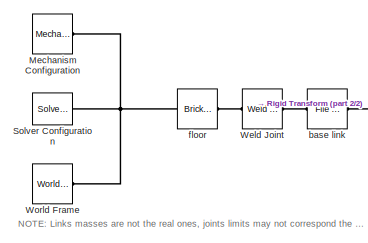
[diagram: root canvas - part 1/2, top left region]
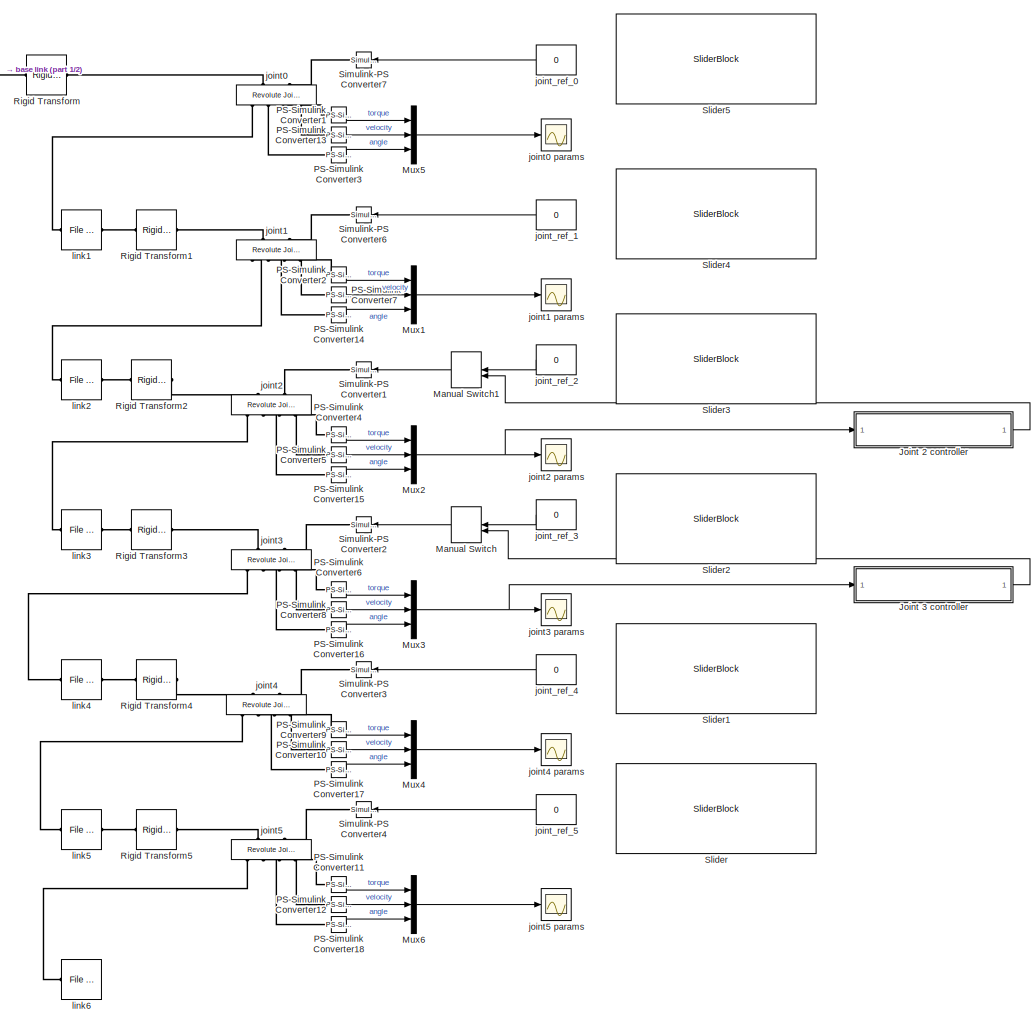
[diagram: root canvas - part 2/2, center side, full height]
MODEL slx_53d466d1d8d0
KIND model
CONFIG AbsTol = auto
CONFIG EnableMultiTasking = off
CONFIG FixedStep = auto
CONFIG MaxStep = auto
CONFIG MinStep = auto
CONFIG RelTol = 1e-3
CONFIG SampleTimeConstraint = Unconstrained
CONFIG SolverName = VariableStepAuto
CONFIG StartTime = 0.0
CONFIG StopTime = inf
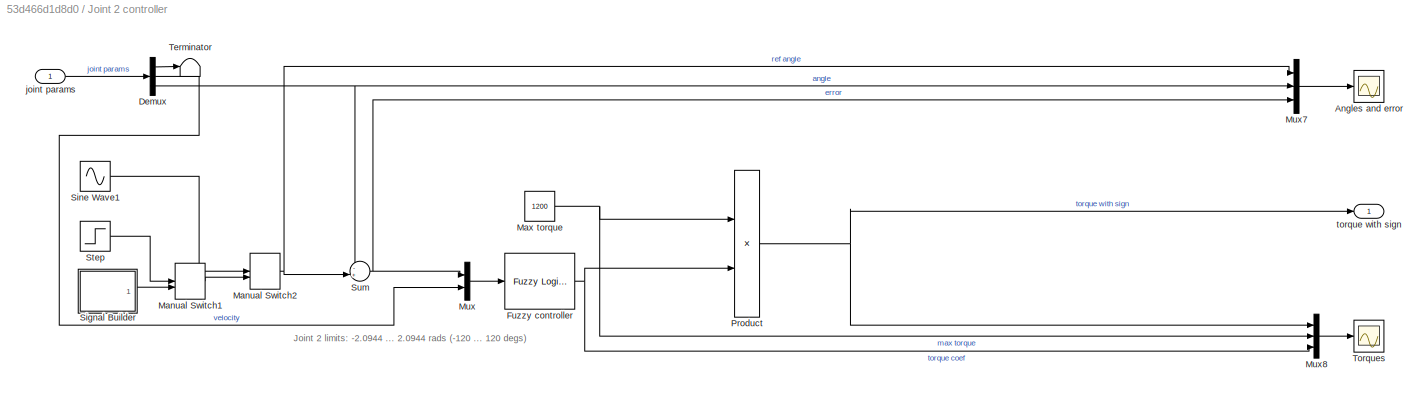
BLOCK [SubSystem] Joint 2 controller
  Ports = [1, 1]
  RequestExecContextInheritance = off
BLOCK [Scope] Joint 2 controller/Angles and error
  Floating = off
  NumInputPorts = 1
  Ports = [1]
  ScopeSpecificationString = Simulink.scopes.TimeScopeBlockCfg('CurrentConfiguration', extmgr.ConfigurationSet(extmgr.Configuration('Core','General UI',true),extmgr.Configuration('Core','Source UI',true),extmgr.Configuration('Sources','WiredSimulink',true,'DataLoggingVariableName','ScopeData1'),extmgr.Configuration('Visuals','Time Domain',true,'SerializedDisplays',{struct('MinYLimReal','-0.94651','MaxYLimReal','0.93899','YLab...<+1455ch>
BLOCK [Demux] Joint 2 controller/Demux
  Outputs = 3
  Ports = [1, 3]
BLOCK [Reference] Joint 2 controller/Fuzzy controller  REF=fuzblock/Fuzzy Logic   (lib defined in mdl_858b3b3e7478)
Controller
  Ports = [1, 1]
  SourceBlock = fuzblock/Fuzzy Logic \nController
  SourceProductBaseCode = FL
  SourceType = Fuzzy Inference System
BLOCK [ManualSwitch] Joint 2 controller/Manual Switch1
  CurrentSetting = 0
BLOCK [ManualSwitch] Joint 2 controller/Manual Switch2
  CurrentSetting = 0
BLOCK [Constant] Joint 2 controller/Max torque
  Value = 1200
BLOCK [Mux] Joint 2 controller/Mux
  DisplayOption = bar
  Inputs = 2
  Ports = [2, 1]
BLOCK [Mux] Joint 2 controller/Mux7
  DisplayOption = bar
  Inputs = 3
  Ports = [3, 1]
BLOCK [Mux] Joint 2 controller/Mux8
  DisplayOption = bar
  Inputs = 3
  Ports = [3, 1]
BLOCK [Product] Joint 2 controller/Product
  Ports = [2, 1]
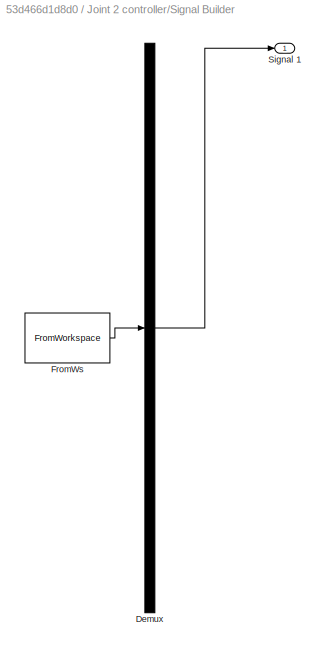
BLOCK [SubSystem] Joint 2 controller/Signal Builder
  ClipboardFcn = sigbuilder_block('clipboard');
  CloseFcn = sigbuilder_block('close');
  ContinueFcn = sigbuilder_block('continue');
  CopyFcn = sigbuilder_block('copy');
  DeleteFcn = sigbuilder_block('delete');
  LoadFcn = sigbuilder_block('load');
  MaskHideContents = on
  ModelCloseFcn = sigbuilder_block('modelClose');
  NameChangeFcn = sigbuilder_block('namechange');
  OpenFcn = sigbuilder_block('open',[297 108.75 550.5 399.75 ]);
  PauseFcn = sigbuilder_block('pause');
  Ports = [0, 1]
  PreSaveFcn = sigbuilder_block('preSave');
  RequestExecContextInheritance = off
  StartFcn = sigbuilder_block('start');
  StopFcn = sigbuilder_block('stop');
  Tag = STV Subsys
BLOCK [Demux] Joint 2 controller/Signal Builder/Demux
  DisplayOption = none
  Outputs = 1
  Ports = [1, 1]
  Tag = STV Demux
BLOCK [FromWorkspace] Joint 2 controller/Signal Builder/FromWs
  Tag = STV FromWs
  VariableName = tuvar
BLOCK [Outport] Joint 2 controller/Signal Builder/Signal 1
  Tag = STV Outport
BLOCK [Sin] Joint 2 controller/Sine Wave1
  Amplitude = 0.5
  Ports = [0, 1]
  SampleTime = 0
BLOCK [Step] Joint 2 controller/Step
  After = -(pi/180)*43
  SampleTime = 0
BLOCK [Sum] Joint 2 controller/Sum
  Inputs = -+|
  Ports = [2, 1]
BLOCK [Terminator] Joint 2 controller/Terminator
BLOCK [Scope] Joint 2 controller/Torques
  Floating = off
  NumInputPorts = 1
  Ports = [1]
  ScopeSpecificationString = Simulink.scopes.TimeScopeBlockCfg('CurrentConfiguration', extmgr.ConfigurationSet(extmgr.Configuration('Core','General UI',true),extmgr.Configuration('Core','Source UI',true),extmgr.Configuration('Sources','WiredSimulink',true,'DataLoggingVariableName','ScopeData2'),extmgr.Configuration('Visuals','Time Domain',true,'SerializedDisplays',{struct('MinYLimReal','-565.56182','MaxYLimReal','1396.17354',...<+1563ch>
BLOCK [Inport] Joint 2 controller/joint params
BLOCK [Outport] Joint 2 controller/torque with sign
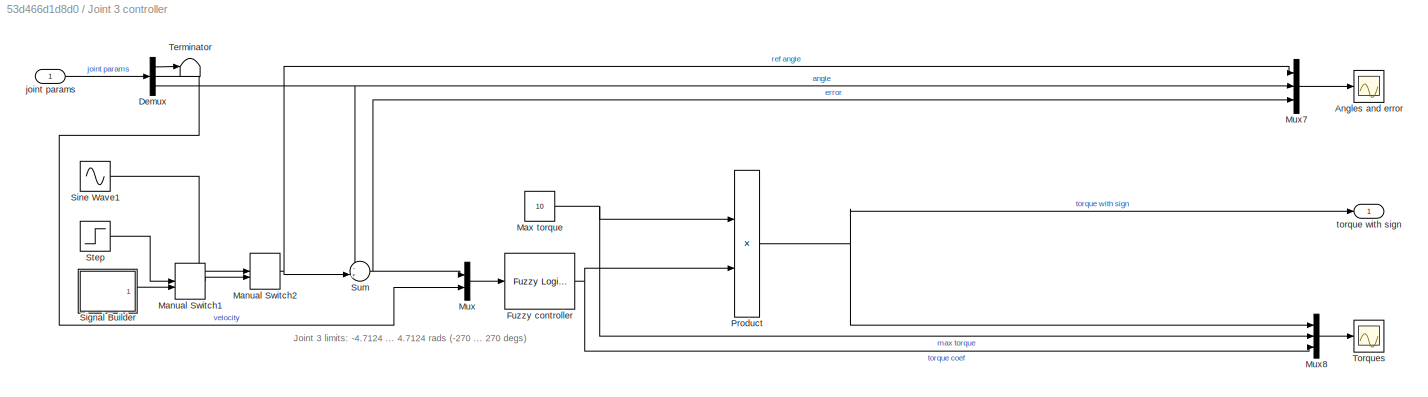
BLOCK [SubSystem] Joint 3 controller
  Ports = [1, 1]
  RequestExecContextInheritance = off
BLOCK [Scope] Joint 3 controller/Angles and error
  Floating = off
  NumInputPorts = 1
  Ports = [1]
  ScopeSpecificationString = Simulink.scopes.TimeScopeBlockCfg('CurrentConfiguration', extmgr.ConfigurationSet(extmgr.Configuration('Core','General UI',true),extmgr.Configuration('Core','Source UI',true),extmgr.Configuration('Sources','WiredSimulink',true,'DataLoggingVariableName','ScopeData1'),extmgr.Configuration('Visuals','Time Domain',true,'SerializedDisplays',{struct('MinYLimReal','-0.93918','MaxYLimReal','0.93931','YLab...<+1453ch>
BLOCK [Demux] Joint 3 controller/Demux
  Outputs = 3
  Ports = [1, 3]
BLOCK [Reference] Joint 3 controller/Fuzzy controller  REF=fuzblock/Fuzzy Logic   (lib defined in mdl_858b3b3e7478)
Controller
  Ports = [1, 1]
  SourceBlock = fuzblock/Fuzzy Logic \nController
  SourceProductBaseCode = FL
  SourceType = Fuzzy Inference System
BLOCK [ManualSwitch] Joint 3 controller/Manual Switch1
  CurrentSetting = 0
BLOCK [ManualSwitch] Joint 3 controller/Manual Switch2
  CurrentSetting = 0
BLOCK [Constant] Joint 3 controller/Max torque
  Value = 10
BLOCK [Mux] Joint 3 controller/Mux
  DisplayOption = bar
  Inputs = 2
  Ports = [2, 1]
BLOCK [Mux] Joint 3 controller/Mux7
  DisplayOption = bar
  Inputs = 3
  Ports = [3, 1]
BLOCK [Mux] Joint 3 controller/Mux8
  DisplayOption = bar
  Inputs = 3
  Ports = [3, 1]
BLOCK [Product] Joint 3 controller/Product
  Ports = [2, 1]
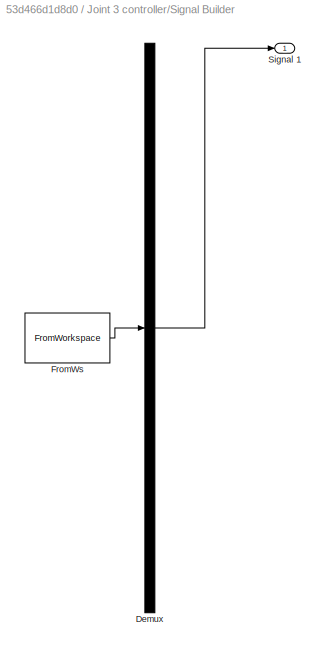
BLOCK [SubSystem] Joint 3 controller/Signal Builder
  ClipboardFcn = sigbuilder_block('clipboard');
  CloseFcn = sigbuilder_block('close');
  ContinueFcn = sigbuilder_block('continue');
  CopyFcn = sigbuilder_block('copy');
  DeleteFcn = sigbuilder_block('delete');
  LoadFcn = sigbuilder_block('load');
  MaskHideContents = on
  ModelCloseFcn = sigbuilder_block('modelClose');
  NameChangeFcn = sigbuilder_block('namechange');
  OpenFcn = sigbuilder_block('open',[297 108.75 550.5 399.75 ]);
  PauseFcn = sigbuilder_block('pause');
  Ports = [0, 1]
  PreSaveFcn = sigbuilder_block('preSave');
  RequestExecContextInheritance = off
  StartFcn = sigbuilder_block('start');
  StopFcn = sigbuilder_block('stop');
  Tag = STV Subsys
BLOCK [Demux] Joint 3 controller/Signal Builder/Demux
  DisplayOption = none
  Outputs = 1
  Ports = [1, 1]
  Tag = STV Demux
BLOCK [FromWorkspace] Joint 3 controller/Signal Builder/FromWs
  Tag = STV FromWs
  VariableName = tuvar
BLOCK [Outport] Joint 3 controller/Signal Builder/Signal 1
  Tag = STV Outport
BLOCK [Sin] Joint 3 controller/Sine Wave1
  Amplitude = 0.5
  Ports = [0, 1]
  SampleTime = 0
BLOCK [Step] Joint 3 controller/Step
  After = (pi/180)*43
  SampleTime = 0
BLOCK [Sum] Joint 3 controller/Sum
  Inputs = -+|
  Ports = [2, 1]
BLOCK [Terminator] Joint 3 controller/Terminator
BLOCK [Scope] Joint 3 controller/Torques
  Floating = off
  NumInputPorts = 1
  Ports = [1]
  ScopeSpecificationString = Simulink.scopes.TimeScopeBlockCfg('CurrentConfiguration', extmgr.ConfigurationSet(extmgr.Configuration('Core','General UI',true),extmgr.Configuration('Core','Source UI',true),extmgr.Configuration('Sources','WiredSimulink',true,'DataLoggingVariableName','ScopeData2'),extmgr.Configuration('Visuals','Time Domain',true,'SerializedDisplays',{struct('MinYLimReal','-2.47874','MaxYLimReal','11.38653','YLa...<+1549ch>
BLOCK [Inport] Joint 3 controller/joint params
BLOCK [Outport] Joint 3 controller/torque with sign
BLOCK [ManualSwitch] Manual Switch
  CurrentSetting = 0
BLOCK [ManualSwitch] Manual Switch1
  CurrentSetting = 0
BLOCK [Reference] Mechanism Configuration  REF=sm_lib/Utilities/Mechanism
Configuration
  NameLocation = top
  Ports = [0, 0, 0, 0, 0, 0, 1]
  SourceBlock = sm_lib/Utilities/Mechanism\nConfiguration
  SourceProductBaseCode = MS
  SourceType = Mechanism\nConfiguration
BLOCK [Mux] Mux1
  DisplayOption = bar
  Inputs = 3
  Ports = [3, 1]
BLOCK [Mux] Mux2
  DisplayOption = bar
  Inputs = 3
  Ports = [3, 1]
BLOCK [Mux] Mux3
  DisplayOption = bar
  Inputs = 3
  Ports = [3, 1]
BLOCK [Mux] Mux4
  DisplayOption = bar
  Inputs = 3
  Ports = [3, 1]
BLOCK [Mux] Mux5
  DisplayOption = bar
  Inputs = 3
  Ports = [3, 1]
BLOCK [Mux] Mux6
  DisplayOption = bar
  Inputs = 3
  Ports = [3, 1]
BLOCK [Reference] PS-Simulink Converter1  REF=nesl_utility/PS-Simulink
Converter
  NameLocation = top
  Ports = [0, 1, 0, 0, 0, 1]
  SourceBlock = nesl_utility/PS-Simulink\nConverter
  SourceProductBaseCode = PW,SS
  SourceType = PS-Simulink\nConverter
BLOCK [Reference] PS-Simulink Converter10  REF=nesl_utility/PS-Simulink
Converter
  NameLocation = top
  Ports = [0, 1, 0, 0, 0, 1]
  SourceBlock = nesl_utility/PS-Simulink\nConverter
  SourceProductBaseCode = PW,SS
  SourceType = PS-Simulink\nConverter
BLOCK [Reference] PS-Simulink Converter11  REF=nesl_utility/PS-Simulink
Converter
  NameLocation = top
  Ports = [0, 1, 0, 0, 0, 1]
  SourceBlock = nesl_utility/PS-Simulink\nConverter
  SourceProductBaseCode = PW,SS
  SourceType = PS-Simulink\nConverter
BLOCK [Reference] PS-Simulink Converter12  REF=nesl_utility/PS-Simulink
Converter
  NameLocation = top
  Ports = [0, 1, 0, 0, 0, 1]
  SourceBlock = nesl_utility/PS-Simulink\nConverter
  SourceProductBaseCode = PW,SS
  SourceType = PS-Simulink\nConverter
BLOCK [Reference] PS-Simulink Converter13  REF=nesl_utility/PS-Simulink
Converter
  NameLocation = top
  Ports = [0, 1, 0, 0, 0, 1]
  SourceBlock = nesl_utility/PS-Simulink\nConverter
  SourceProductBaseCode = PW,SS
  SourceType = PS-Simulink\nConverter
BLOCK [Reference] PS-Simulink Converter14  REF=nesl_utility/PS-Simulink
Converter
  NameLocation = top
  Ports = [0, 1, 0, 0, 0, 1]
  SourceBlock = nesl_utility/PS-Simulink\nConverter
  SourceProductBaseCode = PW,SS
  SourceType = PS-Simulink\nConverter
BLOCK [Reference] PS-Simulink Converter15  REF=nesl_utility/PS-Simulink
Converter
  NameLocation = top
  Ports = [0, 1, 0, 0, 0, 1]
  SourceBlock = nesl_utility/PS-Simulink\nConverter
  SourceProductBaseCode = PW,SS
  SourceType = PS-Simulink\nConverter
BLOCK [Reference] PS-Simulink Converter16  REF=nesl_utility/PS-Simulink
Converter
  NameLocation = top
  Ports = [0, 1, 0, 0, 0, 1]
  SourceBlock = nesl_utility/PS-Simulink\nConverter
  SourceProductBaseCode = PW,SS
  SourceType = PS-Simulink\nConverter
BLOCK [Reference] PS-Simulink Converter17  REF=nesl_utility/PS-Simulink
Converter
  NameLocation = top
  Ports = [0, 1, 0, 0, 0, 1]
  SourceBlock = nesl_utility/PS-Simulink\nConverter
  SourceProductBaseCode = PW,SS
  SourceType = PS-Simulink\nConverter
BLOCK [Reference] PS-Simulink Converter18  REF=nesl_utility/PS-Simulink
Converter
  NameLocation = top
  Ports = [0, 1, 0, 0, 0, 1]
  SourceBlock = nesl_utility/PS-Simulink\nConverter
  SourceProductBaseCode = PW,SS
  SourceType = PS-Simulink\nConverter
BLOCK [Reference] PS-Simulink Converter2  REF=nesl_utility/PS-Simulink
Converter
  NameLocation = top
  Ports = [0, 1, 0, 0, 0, 1]
  SourceBlock = nesl_utility/PS-Simulink\nConverter
  SourceProductBaseCode = PW,SS
  SourceType = PS-Simulink\nConverter
BLOCK [Reference] PS-Simulink Converter3  REF=nesl_utility/PS-Simulink
Converter
  NameLocation = top
  Ports = [0, 1, 0, 0, 0, 1]
  SourceBlock = nesl_utility/PS-Simulink\nConverter
  SourceProductBaseCode = PW,SS
  SourceType = PS-Simulink\nConverter
BLOCK [Reference] PS-Simulink Converter4  REF=nesl_utility/PS-Simulink
Converter
  NameLocation = top
  Ports = [0, 1, 0, 0, 0, 1]
  SourceBlock = nesl_utility/PS-Simulink\nConverter
  SourceProductBaseCode = PW,SS
  SourceType = PS-Simulink\nConverter
BLOCK [Reference] PS-Simulink Converter5  REF=nesl_utility/PS-Simulink
Converter
  NameLocation = top
  Ports = [0, 1, 0, 0, 0, 1]
  SourceBlock = nesl_utility/PS-Simulink\nConverter
  SourceProductBaseCode = PW,SS
  SourceType = PS-Simulink\nConverter
BLOCK [Reference] PS-Simulink Converter6  REF=nesl_utility/PS-Simulink
Converter
  NameLocation = top
  Ports = [0, 1, 0, 0, 0, 1]
  SourceBlock = nesl_utility/PS-Simulink\nConverter
  SourceProductBaseCode = PW,SS
  SourceType = PS-Simulink\nConverter
BLOCK [Reference] PS-Simulink Converter7  REF=nesl_utility/PS-Simulink
Converter
  NameLocation = top
  Ports = [0, 1, 0, 0, 0, 1]
  SourceBlock = nesl_utility/PS-Simulink\nConverter
  SourceProductBaseCode = PW,SS
  SourceType = PS-Simulink\nConverter
BLOCK [Reference] PS-Simulink Converter8  REF=nesl_utility/PS-Simulink
Converter
  NameLocation = top
  Ports = [0, 1, 0, 0, 0, 1]
  SourceBlock = nesl_utility/PS-Simulink\nConverter
  SourceProductBaseCode = PW,SS
  SourceType = PS-Simulink\nConverter
BLOCK [Reference] PS-Simulink Converter9  REF=nesl_utility/PS-Simulink
Converter
  NameLocation = top
  Ports = [0, 1, 0, 0, 0, 1]
  SourceBlock = nesl_utility/PS-Simulink\nConverter
  SourceProductBaseCode = PW,SS
  SourceType = PS-Simulink\nConverter
BLOCK [Reference] Rigid Transform  REF=sm_lib/Frames and
Transforms/Rigid
Transform
  Ports = [0, 0, 0, 0, 0, 1, 1]
  SourceBlock = sm_lib/Frames and\nTransforms/Rigid\nTransform
  SourceProductBaseCode = MS
  SourceType = Rigid\nTransform
BLOCK [Reference] Rigid Transform1  REF=sm_lib/Frames and
Transforms/Rigid
Transform
  Ports = [0, 0, 0, 0, 0, 1, 1]
  SourceBlock = sm_lib/Frames and\nTransforms/Rigid\nTransform
  SourceProductBaseCode = MS
  SourceType = Rigid\nTransform
BLOCK [Reference] Rigid Transform2  REF=sm_lib/Frames and
Transforms/Rigid
Transform
  Ports = [0, 0, 0, 0, 0, 1, 1]
  SourceBlock = sm_lib/Frames and\nTransforms/Rigid\nTransform
  SourceProductBaseCode = MS
  SourceType = Rigid\nTransform
BLOCK [Reference] Rigid Transform3  REF=sm_lib/Frames and
Transforms/Rigid
Transform
  Ports = [0, 0, 0, 0, 0, 1, 1]
  SourceBlock = sm_lib/Frames and\nTransforms/Rigid\nTransform
  SourceProductBaseCode = MS
  SourceType = Rigid\nTransform
BLOCK [Reference] Rigid Transform4  REF=sm_lib/Frames and
Transforms/Rigid
Transform
  Ports = [0, 0, 0, 0, 0, 1, 1]
  SourceBlock = sm_lib/Frames and\nTransforms/Rigid\nTransform
  SourceProductBaseCode = MS
  SourceType = Rigid\nTransform
BLOCK [Reference] Rigid Transform5  REF=sm_lib/Frames and
Transforms/Rigid
Transform
  Ports = [0, 0, 0, 0, 0, 1, 1]
  SourceBlock = sm_lib/Frames and\nTransforms/Rigid\nTransform
  SourceProductBaseCode = MS
  SourceType = Rigid\nTransform
BLOCK [Reference] Simulink-PS Converter1  REF=nesl_utility/Simulink-PS
Converter
  NameLocation = top
  Ports = [1, 0, 0, 0, 0, 0, 1]
  SourceBlock = nesl_utility/Simulink-PS\nConverter
  SourceProductBaseCode = PW,SS
  SourceType = Simulink-PS\nConverter
BLOCK [Reference] Simulink-PS Converter2  REF=nesl_utility/Simulink-PS
Converter
  NameLocation = top
  Ports = [1, 0, 0, 0, 0, 0, 1]
  SourceBlock = nesl_utility/Simulink-PS\nConverter
  SourceProductBaseCode = PW,SS
  SourceType = Simulink-PS\nConverter
BLOCK [Reference] Simulink-PS Converter3  REF=nesl_utility/Simulink-PS
Converter
  NameLocation = top
  Ports = [1, 0, 0, 0, 0, 0, 1]
  SourceBlock = nesl_utility/Simulink-PS\nConverter
  SourceProductBaseCode = PW,SS
  SourceType = Simulink-PS\nConverter
BLOCK [Reference] Simulink-PS Converter4  REF=nesl_utility/Simulink-PS
Converter
  NameLocation = top
  Ports = [1, 0, 0, 0, 0, 0, 1]
  SourceBlock = nesl_utility/Simulink-PS\nConverter
  SourceProductBaseCode = PW,SS
  SourceType = Simulink-PS\nConverter
BLOCK [Reference] Simulink-PS Converter6  REF=nesl_utility/Simulink-PS
Converter
  NameLocation = top
  Ports = [1, 0, 0, 0, 0, 0, 1]
  SourceBlock = nesl_utility/Simulink-PS\nConverter
  SourceProductBaseCode = PW,SS
  SourceType = Simulink-PS\nConverter
BLOCK [Reference] Simulink-PS Converter7  REF=nesl_utility/Simulink-PS
Converter
  NameLocation = top
  Ports = [1, 0, 0, 0, 0, 0, 1]
  SourceBlock = nesl_utility/Simulink-PS\nConverter
  SourceProductBaseCode = PW,SS
  SourceType = Simulink-PS\nConverter
BLOCK [SliderBlock] Slider
  ScaleMax = 6.2832
  ScaleMin = -6.2832
BLOCK [SliderBlock] Slider1
  ScaleMax = 2.5307
  ScaleMin = -2.5307
BLOCK [SliderBlock] Slider2
  ScaleMax = 4.7124
  ScaleMin = -4.7124
BLOCK [SliderBlock] Slider3
  ScaleMax = 2.0944
  ScaleMin = -2.7053
BLOCK [SliderBlock] Slider4
  ScaleMax = 2.4435
  ScaleMin = -1.8326
BLOCK [SliderBlock] Slider5
  ScaleMax = 2.7925
  ScaleMin = -2.7925
BLOCK [Reference] Solver Configuration  REF=nesl_utility/Solver
Configuration
  NameLocation = top
  Ports = [0, 0, 0, 0, 0, 0, 1]
  SourceBlock = nesl_utility/Solver\nConfiguration
  SourceProductBaseCode = PW,SS
  SourceType = Solver\nConfiguration
BLOCK [Reference] Weld Joint  REF=sm_lib/Joints/Weld Joint
  Ports = [0, 0, 0, 0, 0, 1, 1]
  SourceBlock = sm_lib/Joints/Weld Joint
  SourceProductBaseCode = MS
  SourceType = Weld Joint
BLOCK [Reference] World Frame  REF=sm_lib/Frames and
Transforms/World Frame
  NameLocation = top
  Ports = [0, 0, 0, 0, 0, 0, 1]
  SourceBlock = sm_lib/Frames and\nTransforms/World Frame
  SourceProductBaseCode = MS
  SourceType = World Frame
BLOCK [Reference] base link  REF=sm_lib/Body Elements/File Solid
  Ports = [0, 0, 0, 0, 0, 1, 1]
  SourceBlock = sm_lib/Body Elements/File Solid
  SourceProductBaseCode = MS
  SourceType = File Solid
BLOCK [Reference] floor  REF=sm_lib/Body Elements/Brick Solid
  Ports = [0, 0, 0, 0, 0, 1, 1]
  SourceBlock = sm_lib/Body Elements/Brick Solid
  SourceProductBaseCode = MS
  SourceType = Brick Solid
BLOCK [Reference] joint0  REF=sm_lib/Joints/Revolute Joint
  NameLocation = left
  Ports = [0, 0, 0, 0, 0, 2, 4]
  SourceBlock = sm_lib/Joints/Revolute Joint
  SourceProductBaseCode = MS
  SourceType = Revolute Joint
BLOCK [Scope] joint0 params
  Floating = off
  NumInputPorts = 1
  Ports = [1]
  ScopeSpecificationString = Simulink.scopes.TimeScopeBlockCfg('CurrentConfiguration', extmgr.ConfigurationSet(extmgr.Configuration('Core','General UI',true),extmgr.Configuration('Core','Source UI',true),extmgr.Configuration('Sources','WiredSimulink',true),extmgr.Configuration('Visuals','Time Domain',true,'SerializedDisplays',{struct('MinYLimReal','-0.00000000000001','MaxYLimReal','0.00000000000012','YLabelReal','','MinYLimMa...<+1429ch>
BLOCK [Reference] joint1  REF=sm_lib/Joints/Revolute Joint
  NameLocation = left
  Ports = [0, 0, 0, 0, 0, 2, 4]
  SourceBlock = sm_lib/Joints/Revolute Joint
  SourceProductBaseCode = MS
  SourceType = Revolute Joint
BLOCK [Scope] joint1 params
  Floating = off
  NumInputPorts = 1
  Ports = [1]
  ScopeSpecificationString = Simulink.scopes.TimeScopeBlockCfg('CurrentConfiguration', extmgr.ConfigurationSet(extmgr.Configuration('Core','General UI',true),extmgr.Configuration('Core','Source UI',true),extmgr.Configuration('Sources','WiredSimulink',true,'DataLoggingVariableName','ScopeData1'),extmgr.Configuration('Visuals','Time Domain',true,'SerializedDisplays',{struct('MinYLimReal','-0.0018','MaxYLimReal','0.00734','YLabe...<+1434ch>
BLOCK [Reference] joint2  REF=sm_lib/Joints/Revolute Joint
  NameLocation = left
  Ports = [0, 0, 0, 0, 0, 2, 4]
  SourceBlock = sm_lib/Joints/Revolute Joint
  SourceProductBaseCode = MS
  SourceType = Revolute Joint
BLOCK [Scope] joint2 params
  Floating = off
  NumInputPorts = 1
  Ports = [1]
  ScopeSpecificationString = Simulink.scopes.TimeScopeBlockCfg('CurrentConfiguration', extmgr.ConfigurationSet(extmgr.Configuration('Core','General UI',true),extmgr.Configuration('Core','Source UI',true),extmgr.Configuration('Sources','WiredSimulink',true,'DataLoggingVariableName','ScopeData2'),extmgr.Configuration('Visuals','Time Domain',true,'SerializedDisplays',{struct('MinYLimReal','-4.86284','MaxYLimReal','8.73878','YLab...<+1455ch>
BLOCK [Reference] joint3  REF=sm_lib/Joints/Revolute Joint
  NameLocation = left
  Ports = [0, 0, 0, 0, 0, 2, 4]
  SourceBlock = sm_lib/Joints/Revolute Joint
  SourceProductBaseCode = MS
  SourceType = Revolute Joint
BLOCK [Scope] joint3 params
  Floating = off
  NumInputPorts = 1
  Ports = [1]
  ScopeSpecificationString = Simulink.scopes.TimeScopeBlockCfg('CurrentConfiguration', extmgr.ConfigurationSet(extmgr.Configuration('Core','General UI',true),extmgr.Configuration('Core','Source UI',true),extmgr.Configuration('Sources','WiredSimulink',true,'DataLoggingVariableName','ScopeData3'),extmgr.Configuration('Visuals','Time Domain',true,'SerializedDisplays',{struct('MinYLimReal','-0.23632','MaxYLimReal','0.22244','YLab...<+1454ch>
BLOCK [Reference] joint4  REF=sm_lib/Joints/Revolute Joint
  NameLocation = left
  Ports = [0, 0, 0, 0, 0, 2, 4]
  SourceBlock = sm_lib/Joints/Revolute Joint
  SourceProductBaseCode = MS
  SourceType = Revolute Joint
BLOCK [Scope] joint4 params
  Floating = off
  NumInputPorts = 1
  Ports = [1]
  ScopeSpecificationString = Simulink.scopes.TimeScopeBlockCfg('CurrentConfiguration', extmgr.ConfigurationSet(extmgr.Configuration('Core','General UI',true),extmgr.Configuration('Core','Source UI',true),extmgr.Configuration('Sources','WiredSimulink',true,'DataLoggingVariableName','ScopeData4'),extmgr.Configuration('Visuals','Time Domain',true,'SerializedDisplays',{struct('MinYLimReal','-0.000001','MaxYLimReal','0.000011','YL...<+1404ch>
BLOCK [Reference] joint5  REF=sm_lib/Joints/Revolute Joint
  NameLocation = left
  Ports = [0, 0, 0, 0, 0, 2, 4]
  SourceBlock = sm_lib/Joints/Revolute Joint
  SourceProductBaseCode = MS
  SourceType = Revolute Joint
BLOCK [Scope] joint5 params
  Floating = off
  NumInputPorts = 1
  Ports = [1]
  ScopeSpecificationString = Simulink.scopes.TimeScopeBlockCfg('CurrentConfiguration', extmgr.ConfigurationSet(extmgr.Configuration('Core','General UI',true),extmgr.Configuration('Core','Source UI',true),extmgr.Configuration('Sources','WiredSimulink',true,'DataLoggingVariableName','ScopeData6'),extmgr.Configuration('Visuals','Time Domain',true,'SerializedDisplays',{struct('MinYLimReal','-0.00000000000000000000002','MaxYLimRea...<+1540ch>
BLOCK [Constant] joint_ref_0
  Value = 0
BLOCK [Constant] joint_ref_1
  Value = 0
BLOCK [Constant] joint_ref_2
  Value = 0
BLOCK [Constant] joint_ref_3
  Value = 0
BLOCK [Constant] joint_ref_4
  Value = 0
BLOCK [Constant] joint_ref_5
  Value = 0
BLOCK [Reference] link1  REF=sm_lib/Body Elements/File Solid
  NameLocation = top
  Ports = [0, 0, 0, 0, 0, 1, 1]
  SourceBlock = sm_lib/Body Elements/File Solid
  SourceProductBaseCode = MS
  SourceType = File Solid
BLOCK [Reference] link2  REF=sm_lib/Body Elements/File Solid
  NameLocation = top
  Ports = [0, 0, 0, 0, 0, 1, 1]
  SourceBlock = sm_lib/Body Elements/File Solid
  SourceProductBaseCode = MS
  SourceType = File Solid
BLOCK [Reference] link3  REF=sm_lib/Body Elements/File Solid
  NameLocation = top
  Ports = [0, 0, 0, 0, 0, 1, 1]
  SourceBlock = sm_lib/Body Elements/File Solid
  SourceProductBaseCode = MS
  SourceType = File Solid
BLOCK [Reference] link4  REF=sm_lib/Body Elements/File Solid
  NameLocation = top
  Ports = [0, 0, 0, 0, 0, 1, 1]
  SourceBlock = sm_lib/Body Elements/File Solid
  SourceProductBaseCode = MS
  SourceType = File Solid
BLOCK [Reference] link5  REF=sm_lib/Body Elements/File Solid
  NameLocation = top
  Ports = [0, 0, 0, 0, 0, 1, 1]
  SourceBlock = sm_lib/Body Elements/File Solid
  SourceProductBaseCode = MS
  SourceType = File Solid
BLOCK [Reference] link6  REF=sm_lib/Body Elements/File Solid
  NameLocation = top
  Ports = [0, 0, 0, 0, 0, 0, 1]
  SourceBlock = sm_lib/Body Elements/File Solid
  SourceProductBaseCode = MS
  SourceType = File Solid
ANNOTATION (root): NOTE: Links masses are not the real ones, joints limits may not correspond the real ones (need to check with the real robot)
ANNOTATION Joint 2 controller: Joint 2 limits: - 2.0944 ... 2.0944 rads (-120 ... 120 degs)
ANNOTATION Joint 3 controller: Joint 3 limits: -4.7124 ... 4.7124 rads (-270 ... 270 degs)
LINE Joint 2 controller/Demux:1 -> Joint 2 controller/Terminator:1
LINE Joint 2 controller/Demux:2 -> Joint 2 controller/Mux:2
NET Joint 2 controller/Demux:3 -> Joint 2 controller/Mux7:2, Joint 2 controller/Sum:1
NET Joint 2 controller/Fuzzy controller:1 -> Joint 2 controller/Mux8:3, Joint 2 controller/Product:2
LINE Joint 2 controller/Manual Switch1:1 -> Joint 2 controller/Manual Switch2:2
NET Joint 2 controller/Manual Switch2:1 -> Joint 2 controller/Mux7:1, Joint 2 controller/Sum:2
NET Joint 2 controller/Max torque:1 -> Joint 2 controller/Mux8:2, Joint 2 controller/Product:1
LINE Joint 2 controller/Mux7:1 -> Joint 2 controller/Angles and error:1
LINE Joint 2 controller/Mux8:1 -> Joint 2 controller/Torques:1
LINE Joint 2 controller/Mux:1 -> Joint 2 controller/Fuzzy controller:1
NET Joint 2 controller/Product:1 -> Joint 2 controller/Mux8:1, Joint 2 controller/torque with sign:1
LINE Joint 2 controller/Signal Builder:1 -> Joint 2 controller/Manual Switch1:2
LINE Joint 2 controller/Sine Wave1:1 -> Joint 2 controller/Manual Switch2:1
LINE Joint 2 controller/Step:1 -> Joint 2 controller/Manual Switch1:1
NET Joint 2 controller/Sum:1 -> Joint 2 controller/Mux7:3, Joint 2 controller/Mux:1
LINE Joint 2 controller/joint params:1 -> Joint 2 controller/Demux:1
LINE Joint 2 controller:1 -> Manual Switch1:2
LINE Joint 3 controller/Demux:1 -> Joint 3 controller/Terminator:1
LINE Joint 3 controller/Demux:2 -> Joint 3 controller/Mux:2
NET Joint 3 controller/Demux:3 -> Joint 3 controller/Mux7:2, Joint 3 controller/Sum:1
NET Joint 3 controller/Fuzzy controller:1 -> Joint 3 controller/Mux8:3, Joint 3 controller/Product:2
LINE Joint 3 controller/Manual Switch1:1 -> Joint 3 controller/Manual Switch2:2
NET Joint 3 controller/Manual Switch2:1 -> Joint 3 controller/Mux7:1, Joint 3 controller/Sum:2
NET Joint 3 controller/Max torque:1 -> Joint 3 controller/Mux8:2, Joint 3 controller/Product:1
LINE Joint 3 controller/Mux7:1 -> Joint 3 controller/Angles and error:1
LINE Joint 3 controller/Mux8:1 -> Joint 3 controller/Torques:1
LINE Joint 3 controller/Mux:1 -> Joint 3 controller/Fuzzy controller:1
NET Joint 3 controller/Product:1 -> Joint 3 controller/Mux8:1, Joint 3 controller/torque with sign:1
LINE Joint 3 controller/Signal Builder:1 -> Joint 3 controller/Manual Switch1:2
LINE Joint 3 controller/Sine Wave1:1 -> Joint 3 controller/Manual Switch2:1
LINE Joint 3 controller/Step:1 -> Joint 3 controller/Manual Switch1:1
NET Joint 3 controller/Sum:1 -> Joint 3 controller/Mux7:3, Joint 3 controller/Mux:1
LINE Joint 3 controller/joint params:1 -> Joint 3 controller/Demux:1
LINE Joint 3 controller:1 -> Manual Switch:2
LINE Manual Switch1:1 -> Simulink-PS Converter1:1
LINE Manual Switch:1 -> Simulink-PS Converter2:1
LINE Mux1:1 -> joint1 params:1
NET Mux2:1 -> Joint 2 controller:1, joint2 params:1
NET Mux3:1 -> Joint 3 controller:1, joint3 params:1
LINE Mux4:1 -> joint4 params:1
LINE Mux5:1 -> joint0 params:1
LINE Mux6:1 -> joint5 params:1
LINE PS-Simulink Converter10:1 -> Mux4:2
LINE PS-Simulink Converter11:1 -> Mux6:1
LINE PS-Simulink Converter12:1 -> Mux6:2
LINE PS-Simulink Converter13:1 -> Mux5:2
LINE PS-Simulink Converter14:1 -> Mux1:3
LINE PS-Simulink Converter15:1 -> Mux2:3
LINE PS-Simulink Converter16:1 -> Mux3:3
LINE PS-Simulink Converter17:1 -> Mux4:3
LINE PS-Simulink Converter18:1 -> Mux6:3
LINE PS-Simulink Converter1:1 -> Mux5:1
LINE PS-Simulink Converter2:1 -> Mux1:1
LINE PS-Simulink Converter3:1 -> Mux5:3
LINE PS-Simulink Converter4:1 -> Mux2:1
LINE PS-Simulink Converter5:1 -> Mux2:2
LINE PS-Simulink Converter6:1 -> Mux3:1
LINE PS-Simulink Converter7:1 -> Mux1:2
LINE PS-Simulink Converter8:1 -> Mux3:2
LINE PS-Simulink Converter9:1 -> Mux4:1
LINE joint_ref_0:1 -> Simulink-PS Converter7:1
LINE joint_ref_1:1 -> Simulink-PS Converter6:1
LINE joint_ref_2:1 -> Manual Switch1:1
LINE joint_ref_3:1 -> Manual Switch:1
LINE joint_ref_4:1 -> Simulink-PS Converter3:1
LINE joint_ref_5:1 -> Simulink-PS Converter4:1
PNET net1: Mechanism Configuration:RConn1 -- Solver Configuration:RConn1 -- World Frame:RConn1 -- floor:RConn1
PLINE PS-Simulink Converter10:LConn1 -- joint4:RConn3
PLINE PS-Simulink Converter11:LConn1 -- joint5:RConn4
PLINE PS-Simulink Converter12:LConn1 -- joint5:RConn3
PLINE PS-Simulink Converter13:LConn1 -- joint0:RConn3
PLINE PS-Simulink Converter14:LConn1 -- joint1:RConn2
PLINE PS-Simulink Converter15:LConn1 -- joint2:RConn2
PLINE PS-Simulink Converter16:LConn1 -- joint3:RConn2
PLINE PS-Simulink Converter17:LConn1 -- joint4:RConn2
PLINE PS-Simulink Converter18:LConn1 -- joint5:RConn2
PLINE PS-Simulink Converter1:LConn1 -- joint0:RConn4
PLINE PS-Simulink Converter2:LConn1 -- joint1:RConn4
PLINE PS-Simulink Converter3:LConn1 -- joint0:RConn2
PLINE PS-Simulink Converter4:LConn1 -- joint2:RConn4
PLINE PS-Simulink Converter5:LConn1 -- joint2:RConn3
PLINE PS-Simulink Converter6:LConn1 -- joint3:RConn4
PLINE PS-Simulink Converter7:LConn1 -- joint1:RConn3
PLINE PS-Simulink Converter8:LConn1 -- joint3:RConn3
PLINE PS-Simulink Converter9:LConn1 -- joint4:RConn4
PLINE Rigid Transform1:LConn1 -- link1:LConn1
PLINE Rigid Transform1:RConn1 -- joint1:LConn1
PLINE Rigid Transform2:LConn1 -- link2:LConn1
PLINE Rigid Transform2:RConn1 -- joint2:LConn1
PLINE Rigid Transform3:LConn1 -- link3:LConn1
PLINE Rigid Transform3:RConn1 -- joint3:LConn1
PLINE Rigid Transform4:LConn1 -- link4:LConn1
PLINE Rigid Transform4:RConn1 -- joint4:LConn1
PLINE Rigid Transform5:LConn1 -- link5:LConn1
PLINE Rigid Transform5:RConn1 -- joint5:LConn1
PLINE Rigid Transform:LConn1 -- base link:LConn1
PLINE Rigid Transform:RConn1 -- joint0:LConn1
PLINE Simulink-PS Converter1:RConn1 -- joint2:LConn2
PLINE Simulink-PS Converter2:RConn1 -- joint3:LConn2
PLINE Simulink-PS Converter3:RConn1 -- joint4:LConn2
PLINE Simulink-PS Converter4:RConn1 -- joint5:LConn2
PLINE Simulink-PS Converter6:RConn1 -- joint1:LConn2
PLINE Simulink-PS Converter7:RConn1 -- joint0:LConn2
PLINE Weld Joint:LConn1 -- floor:LConn1
PLINE Weld Joint:RConn1 -- base link:RConn1
PLINE joint0:RConn1 -- link1:RConn1
PLINE joint1:RConn1 -- link2:RConn1
PLINE joint2:RConn1 -- link3:RConn1
PLINE joint3:RConn1 -- link4:RConn1
PLINE joint4:RConn1 -- link5:RConn1
PLINE joint5:RConn1 -- link6:RConn1
note: NET lines group one-source signal fan-out (src -> all destinations, sorted); 1:1 wires keep LINE; PNET lines group multi-terminal physical nets as a canonical sorted terminal list (undirected conserving connections); 2-terminal nets keep the pairwise PLINE form
